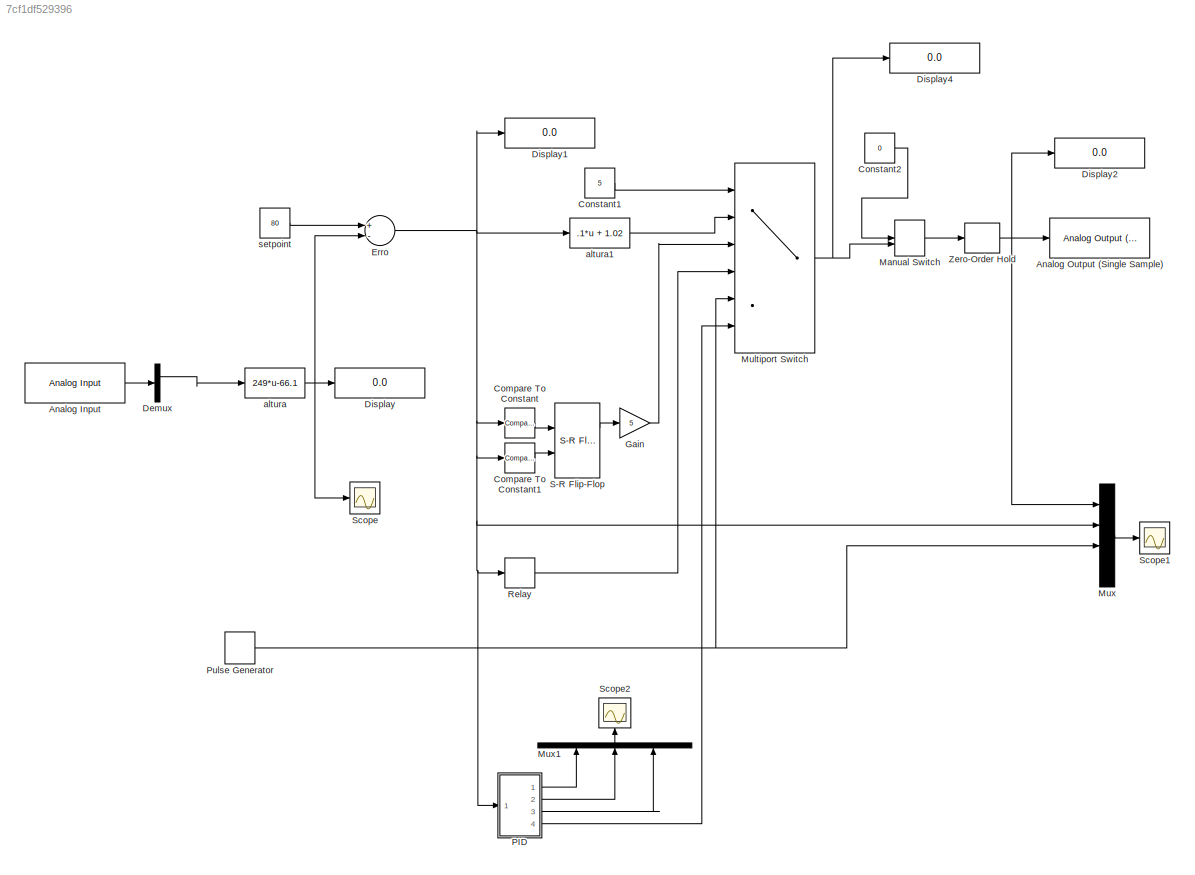
MODEL slx_7cf1df529396
KIND model
BLOCK [Reference] Analog Input  REF=daqlib/Analog Input
  AcqMode = 0
  ActualRate = 20
  Channels = 1$0$$2$#0$1$$2$#0$2$$2$#0$3$$2$#0$4$$2$#0$5$$2$#0$6$$2$#0$7$$2$#
  DataType = double
  Device = nidaq Dev1 (USB-6009)
  DeviceMenu = nidaq Dev1 (USB-6009)
  InputType = SingleEnded
  NChannelsSelected = 1
  NPorts = 1 for all hardware channels
  ObjConstructor = analoginput('nidaq','Dev1')
  Ports = [0, 1]
  SampleRate = 20
  SamplesPerFrame = 2
  SignalType = Sample-based
  SourceBlock = daqlib/Analog Input
  SourceType = Analog Input
BLOCK [Reference] Analog Output (Single Sample)  REF=daqlib/Analog Output
(Single Sample)
  Channels = 1$0$$1$0$#0$1$$1$0$#
  Device = nidaq Dev1 (USB-6009)
  DeviceMenu = nidaq Dev1 (USB-6009)
  NChannelsSelected = 1
  NPorts = 1 for all hardware channels
  ObjConstructor = analogoutput('nidaq','Dev1')
  Ports = [1]
  SourceBlock = daqlib/Analog Output\n(Single Sample)
  SourceType = Analog Output (Single Sample)
BLOCK [Reference] Compare To Constant  REF=simulink/Logic and Bit
Operations/Compare
To Constant
  OutDataTypeStr = boolean
  Ports = [1, 1]
  SourceBlock = simulink/Logic and Bit\nOperations/Compare\nTo Constant
  SourceType = Compare To Constant
  ZeroCross = on
  const = 20
  relop = >
BLOCK [Reference] Compare To Constant1  REF=simulink/Logic and Bit
Operations/Compare
To Constant
  OutDataTypeStr = boolean
  Ports = [1, 1]
  SourceBlock = simulink/Logic and Bit\nOperations/Compare\nTo Constant
  SourceType = Compare To Constant
  ZeroCross = on
  const = -20
  relop = <
BLOCK [Constant] Constant1
  Value = 5
BLOCK [Constant] Constant2
  Value = 0
BLOCK [Demux] Demux
  DisplayOption = bar
  Outputs = 2
  Ports = [1, 2]
BLOCK [Display] Display
  Decimation = 1
  Lockdown = off
  Ports = [1]
BLOCK [Display] Display1
  Decimation = 1
  Lockdown = off
  Ports = [1]
BLOCK [Display] Display2
  Decimation = 1
  Lockdown = off
  Ports = [1]
BLOCK [Display] Display4
  Decimation = 1
  Lockdown = off
  Ports = [1]
BLOCK [Sum] Erro
  InputSameDT = off
  Inputs = +-
  OutDataTypeStr = Inherit: Inherit via internal rule
  Ports = [2, 1]
  SaturateOnIntegerOverflow = off
BLOCK [Gain] Gain
  Gain = 5
  OutDataTypeStr = Inherit: Inherit via internal rule
  ParamDataTypeStr = Inherit: Inherit via internal rule
  SaturateOnIntegerOverflow = off
BLOCK [ManualSwitch] Manual Switch
BLOCK [MultiPortSwitch] Multiport Switch
  InputSameDT = off
  Inputs = 5
  Ports = [6, 1]
  SaturateOnIntegerOverflow = off
BLOCK [Mux] Mux
  DisplayOption = bar
  Ports = [4, 1]
BLOCK [Mux] Mux1
  DisplayOption = bar
  Inputs = 3
  Ports = [3, 1]
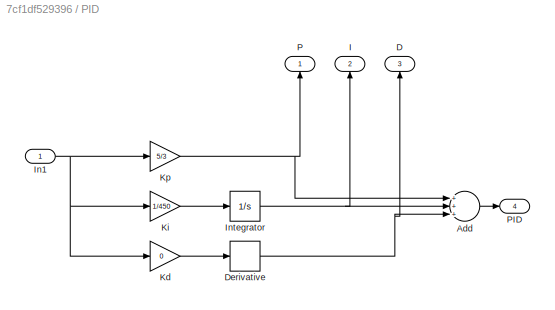
BLOCK [SubSystem] PID
  FunctionWithSeparateData = off
  MaskHideContents = off
  MinAlgLoopOccurrences = off
  Opaque = off
  Ports = [1, 4]
  PropExecContextOutsideSubsystem = off
  RTWSystemCode = Auto
  RequestExecContextInheritance = off
BLOCK [Sum] PID/Add
  InputSameDT = off
  Inputs = +++
  OutDataTypeStr = Inherit: Inherit via internal rule
  Ports = [3, 1]
  SaturateOnIntegerOverflow = off
BLOCK [Outport] PID/D
  IconDisplay = Port number
  Port = 3
BLOCK [Derivative] PID/Derivative
BLOCK [Outport] PID/I
  IconDisplay = Port number
  Port = 2
BLOCK [Inport] PID/In1
  IconDisplay = Port number
BLOCK [Integrator] PID/Integrator
  Ports = [1, 1]
BLOCK [Gain] PID/Kd
  Gain = 0
  OutDataTypeStr = Inherit: Inherit via internal rule
  ParamDataTypeStr = Inherit: Inherit via internal rule
  SaturateOnIntegerOverflow = off
BLOCK [Gain] PID/Ki
  Gain = 1/450
  OutDataTypeStr = Inherit: Inherit via internal rule
  ParamDataTypeStr = Inherit: Inherit via internal rule
  SaturateOnIntegerOverflow = off
BLOCK [Gain] PID/Kp
  Gain = 5/3
  OutDataTypeStr = Inherit: Inherit via internal rule
  ParamDataTypeStr = Inherit: Inherit via internal rule
  SaturateOnIntegerOverflow = off
BLOCK [Outport] PID/P
  IconDisplay = Port number
BLOCK [Outport] PID/PID
  IconDisplay = Port number
  Port = 4
BLOCK [DiscretePulseGenerator] Pulse Generator
  Amplitude = 5
  Period = 1
  Ports = [0, 1]
  PulseType = Time based
  PulseWidth = 10
BLOCK [Relay] Relay
  InputProcessing = Elements as channels (sample based)
  OffOutputValue = 1
  OffSwitchValue = -20
  OnOutputValue = 5
  OnSwitchValue = 20
BLOCK [Reference] S-R Flip-Flop  REF=simulink_extras/Flip Flops/S-R
Flip-Flop
  Ports = [2, 2]
  SourceBlock = simulink_extras/Flip Flops/S-R\nFlip-Flop
  SourceType = SRFlipFlop
  initial_condition = 0
BLOCK [Scope] Scope
  DataFormat = StructureWithTime
  Floating = off
  NumInputPorts = 1
  Ports = [1]
  SampleTime = 0
  ShowLegends = off
  YMax = 162.25
  YMin = 157.5
BLOCK [Scope] Scope1
  DataFormat = StructureWithTime
  Floating = off
  NumInputPorts = 1
  Ports = [1]
  SampleTime = 0
  SaveName = ScopeData1
  ShowLegends = off
  TimeRange = 10
  YMax = 27.5
  YMin = -15
BLOCK [Scope] Scope2
  DataFormat = StructureWithTime
  Floating = off
  NumInputPorts = 1
  Ports = [1]
  SampleTime = 0
  SaveName = ScopeData2
  ShowLegends = off
  YMax = 100
  YMin = -650
BLOCK [ZeroOrderHold] Zero-Order Hold
  SampleTime = .1
BLOCK [Fcn] altura
  Expr = 249*u-66.1
BLOCK [Fcn] altura1
  Expr = .1*u + 1.02
BLOCK [Constant] setpoint
  Value = 80
LINE Analog Input:1 -> Demux:1
LINE Compare To Constant1:1 -> S-R Flip-Flop:2
LINE Compare To Constant:1 -> S-R Flip-Flop:1
LINE Constant1:1 -> Multiport Switch:1
LINE Constant2:1 -> Manual Switch:1
LINE Demux:1 -> altura:1
NET Erro:1 -> Compare To Constant1:1, Compare To Constant:1, Display1:1, Mux:2, PID:1, Relay:1, altura1:1
LINE Gain:1 -> Multiport Switch:3
LINE Manual Switch:1 -> Zero-Order Hold:1
NET Multiport Switch:1 -> Display4:1, Manual Switch:2
LINE Mux1:1 -> Scope2:1
LINE Mux:1 -> Scope1:1
LINE PID/Add:1 -> PID/PID:1
NET PID/Derivative:1 -> PID/Add:3, PID/D:1
NET PID/In1:1 -> PID/Kd:1, PID/Ki:1, PID/Kp:1
NET PID/Integrator:1 -> PID/Add:2, PID/I:1
LINE PID/Kd:1 -> PID/Derivative:1
LINE PID/Ki:1 -> PID/Integrator:1
NET PID/Kp:1 -> PID/Add:1, PID/P:1
LINE PID:1 -> Mux1:1
LINE PID:2 -> Mux1:2
LINE PID:3 -> Mux1:3
LINE PID:4 -> Multiport Switch:6
NET Pulse Generator:1 -> Multiport Switch:5, Mux:3
LINE Relay:1 -> Multiport Switch:4
LINE S-R Flip-Flop:1 -> Gain:1
NET Zero-Order Hold:1 -> Analog Output (Single Sample):1, Display2:1, Mux:1
LINE altura1:1 -> Multiport Switch:2
NET altura:1 -> Display:1, Erro:2, Scope:1
LINE setpoint:1 -> Erro:1
note: NET lines group one-source signal fan-out (src -> all destinations, sorted); 1:1 wires keep LINE
